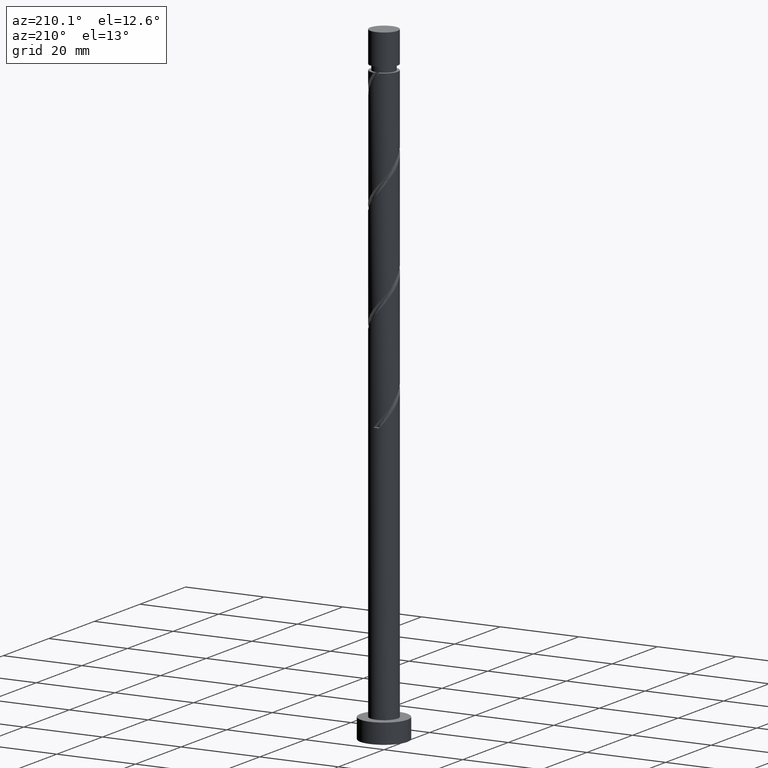
[diagram: clean part render]
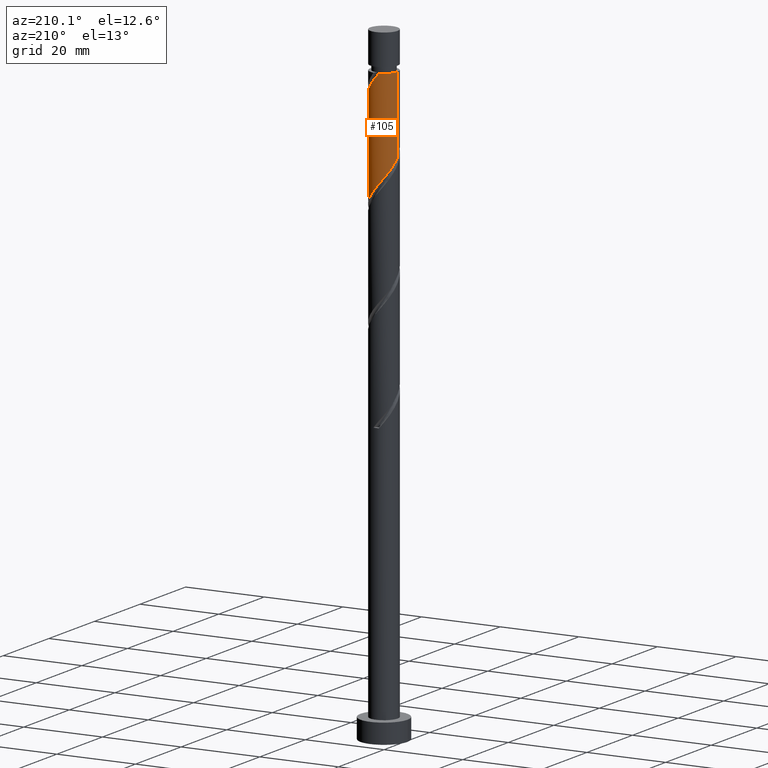
[diagram: same view with one face highlighted and labeled with its STEP entity id]
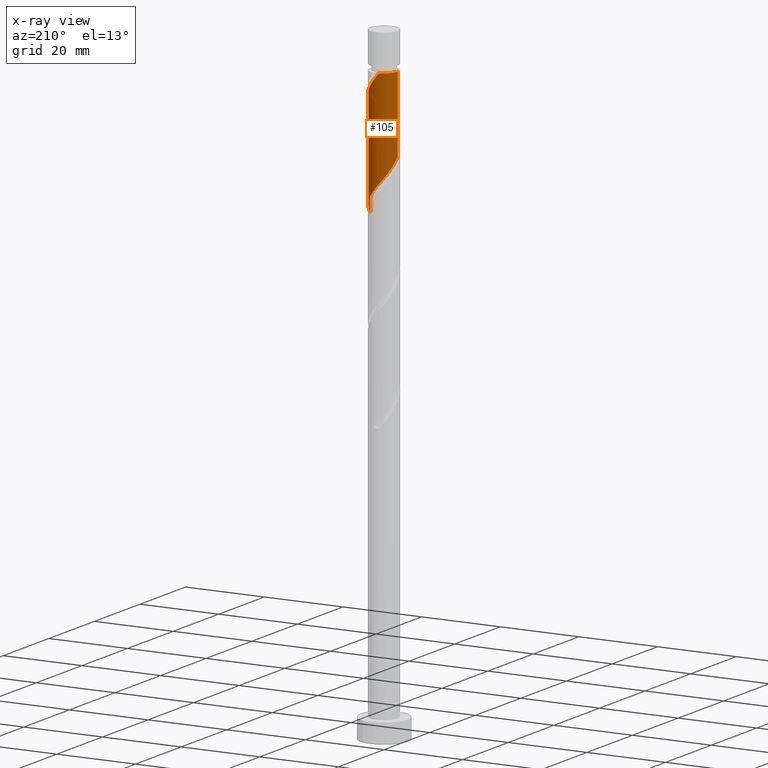
[diagram: x-ray of the same camera — body ghosted, the highlighted face saturated]
A machine part, auxiliary view. The second image highlights one B-rep face of the part: STEP entity #105.
The next image is the same camera in x-ray: the body ghosted, the highlighted face saturated — about 0% of this face is hidden behind the body in this view.
In plain terms, the highlighted cylindrical surface (edge-blend (fillet) strip) has radius 3.5 mm, axis along (-0, -0, -1).
Its self-contained STEP definition (entity closure, byte-faithful):
#44 = VERTEX_POINT ( 'NONE', #633 ) ;
#47 = CARTESIAN_POINT ( 'NONE',  ( 0.6964912059746352080, 3.430000000000000604, 124.1076006561708169 ) ) ;
#82 = EDGE_CURVE ( 'NONE', #663, #44, #1357, .T. ) ;
#85 = CARTESIAN_POINT ( 'NONE',  ( 2.136116297704123035, 2.772545249889145413, 147.1379036864738623 ) ) ;
#90 = CARTESIAN_POINT ( 'NONE',  ( 1.737484471651195017, 3.079672406947903784, 147.7439642925345140 ) ) ;
#94 = CARTESIAN_POINT ( 'NONE',  ( 3.126661557603649388, 1.651430267237720129, 145.3197218682921061 ) ) ;
#105 = ADVANCED_FACE ( 'NONE', ( #1432 ), #1174, .T. ) ;
#108 = CARTESIAN_POINT ( 'NONE',  ( -3.295966512314554286, 1.177541825032570211, 130.1682067167769219 ) ) ;
#144 = CARTESIAN_POINT ( 'NONE',  ( 2.801055960780706400, 2.158082465505002823, 121.0772976258678000 ) ) ;
#228 = CARTESIAN_POINT ( 'NONE',  ( 3.494208578988649894, 0.2012620344778335846, 143.5015400501102079 ) ) ;
#306 = CARTESIAN_POINT ( 'NONE',  ( -0.2980642516491546212, 3.487285147774530358, 125.3197218682920777 ) ) ;
#320 = CARTESIAN_POINT ( 'NONE',  ( -0.6964912059746326545, 3.429999999999992166, 150.7742673228374883 ) ) ;
#346 = CARTESIAN_POINT ( 'NONE',  ( 2.534748123757053495, 2.465418092830386598, 146.5318430804132674 ) ) ;
#351 = CARTESIAN_POINT ( 'NONE',  ( 3.295966512314560060, 1.177541825032570211, 144.7136612622314260 ) ) ;
#431 = DIRECTION ( 'NONE',  ( -1.000000000000000000, 0.000000000000000000, 0.000000000000000000 ) ) ;
#475 = CARTESIAN_POINT ( 'NONE',  ( 1.268472316260691013, 3.262051192559717538, 148.3500248985950520 ) ) ;
#556 = CARTESIAN_POINT ( 'NONE',  ( -2.534748123757047278, 2.465418092830385266, 128.3500248985950805 ) ) ;
#606 = CARTESIAN_POINT ( 'NONE',  ( 2.830704840680350998, 2.058424180034053474, 145.9257824743526442 ) ) ;
#612 = CARTESIAN_POINT ( 'NONE',  ( -3.465271467025464069, 0.7036533828274215141, 130.7742673228375168 ) ) ;
#613 = DIRECTION ( 'NONE',  ( -1.000000000000000000, 0.000000000000000000, 0.000000000000000000 ) ) ;
#619 = CARTESIAN_POINT ( 'NONE',  ( -3.500000000000000444, -1.809775305123072608E-15, 131.6237218021383910 ) ) ;
#633 = CARTESIAN_POINT ( 'NONE',  ( 3.499999999999999556, -3.769118817281109849E-15, 118.2903884688050482 ) ) ;
#652 = CARTESIAN_POINT ( 'NONE',  ( 3.500000000000000444, 0.4008512458479271956, 118.7763484217763761 ) ) ;
#663 = VERTEX_POINT ( 'NONE', #619 ) ;
#670 = CARTESIAN_POINT ( 'NONE',  ( -1.737484471651192353, 3.079672406947898899, 127.1379036864739192 ) ) ;
#689 = CARTESIAN_POINT ( 'NONE',  ( -2.136116297704119926, 2.772545249889141417, 127.7439642925344572 ) ) ;
#731 = DIRECTION ( 'NONE',  ( -0.000000000000000000, -0.000000000000000000, -1.000000000000000000 ) ) ;
#743 = AXIS2_PLACEMENT_3D ( 'NONE', #976, #1388, #613 ) ;
#744 = CARTESIAN_POINT ( 'NONE',  ( -3.500000000000000000, 0.1007143428333827501, 131.5016237974201658 ) ) ;
#746 = CARTESIAN_POINT ( 'NONE',  ( -3.499999999999993783, 0.000000000000000000, 150.7742673228374883 ) ) ;
#801 = CARTESIAN_POINT ( 'NONE',  ( 3.409370647451650527, 0.7913228091588876412, 119.2591158076859728 ) ) ;
#808 = CARTESIAN_POINT ( 'NONE',  ( 3.499999999999999556, -3.769118817281109849E-15, 118.2903884688050624 ) ) ;
#819 = ORIENTED_EDGE ( 'NONE', *, *, #1333, .T. ) ;
#837 = CARTESIAN_POINT ( 'NONE',  ( 3.500000000000005329, 0.1007143428333801827, 143.3802441815881537 ) ) ;
#867 = VERTEX_POINT ( 'NONE', #746 ) ;
#899 = VECTOR ( 'NONE', #1369, 1000.000000000000000 ) ;
#914 = CARTESIAN_POINT ( 'NONE',  ( 3.048325782366091641, 1.719799384975514656, 120.4712370198072193 ) ) ;
#917 = ORIENTED_EDGE ( 'NONE', *, *, #1402, .F. ) ;
#924 = CARTESIAN_POINT ( 'NONE',  ( -1.268472316260688793, 3.262051192559713098, 126.5318430804132959 ) ) ;
#931 = VECTOR ( 'NONE', #731, 1000.000000000000000 ) ;
#935 =( BOUNDED_CURVE ( )  B_SPLINE_CURVE ( 2, ( #1376, #837, #228, #1643, #351, #94, #606, #346, #85, #90, #475, #1494, #1263, #1136, #989 ),
 .UNSPECIFIED., .F., .T. ) 
 B_SPLINE_CURVE_WITH_KNOTS ( ( 3, 2, 2, 2, 2, 2, 2, 3 ),
 ( 0.6795252162417514397, 0.6818181818181818787, 0.6931818181818181213, 0.7045454545454545858, 0.7159090909090908283, 0.7272727272727272929, 0.7386363636363636465, 0.7500000000000000000 ),
 .UNSPECIFIED. ) 
 CURVE ( )  GEOMETRIC_REPRESENTATION_ITEM ( )  RATIONAL_B_SPLINE_CURVE ( ( 0.9061101570135634553, 0.9072237824201456746, 0.9090909090909231605, 0.8998376744372253988, 0.9090909090909231605, 0.8998376744372253988, 0.9090909090909231605, 0.8998376744372253988, 0.9090909090909231605, 0.8998376744372253988, 0.9090909090909231605, 0.8998376744372253988, 0.9090909090909231605, 0.8998376744372253988, 0.9090909090909231605 ) ) 
 REPRESENTATION_ITEM ( '' )  );
#976 = CARTESIAN_POINT ( 'NONE',  ( 0.000000000000000000, 0.000000000000000000, 150.7742673228374883 ) ) ;
#985 = CARTESIAN_POINT ( 'NONE',  ( -3.500000000000000000, 0.000000000000000000, 160.0000000000000000 ) ) ;
#989 = CARTESIAN_POINT ( 'NONE',  ( -0.6964912059746326545, 3.429999999999992166, 150.7742673228374883 ) ) ;
#996 = CARTESIAN_POINT ( 'NONE',  ( 3.500000000000004885, 1.929429870751030982E-15, 143.2581461768699000 ) ) ;
#1002 = CARTESIAN_POINT ( 'NONE',  ( -3.126661557603643171, 1.651430267237719463, 129.5621461107163270 ) ) ;
#1051 = CARTESIAN_POINT ( 'NONE',  ( 3.295595603951475994, 1.281516304446022936, 119.8651764137465960 ) ) ;
#1069 = CARTESIAN_POINT ( 'NONE',  ( 2.079591422188713956, 2.859813619819376651, 122.2894188379890181 ) ) ;
#1117 = CARTESIAN_POINT ( 'NONE',  ( 3.500000000000000000, 4.286263797015736595E-16, 160.0000000000000000 ) ) ;
#1136 = CARTESIAN_POINT ( 'NONE',  ( -0.2033316575718749075, 3.530140317377540082, 150.1682067167769219 ) ) ;
#1174 = CYLINDRICAL_SURFACE ( 'NONE', #1375, 3.500000000000000000 ) ;
#1175 = CIRCLE ( 'NONE', #743, 3.499999999999993783 ) ;
#1195 = CARTESIAN_POINT ( 'NONE',  ( 1.634621088283053858, 3.094836651220921553, 122.8954794440496414 ) ) ;
#1214 = CARTESIAN_POINT ( 'NONE',  ( 2.440323691484711066, 2.508948042662190403, 121.6833582319284233 ) ) ;
#1263 = CARTESIAN_POINT ( 'NONE',  ( 0.2980642516491557870, 3.487285147774535243, 149.5621461107162418 ) ) ;
#1270 = CARTESIAN_POINT ( 'NONE',  ( -3.494208578988645009, 0.2012620344778347226, 131.3803279288981116 ) ) ;
#1311 = CARTESIAN_POINT ( 'NONE',  ( 0.2033316575718757679, 3.530140317377534309, 124.7136612622314402 ) ) ;
#1321 = VERTEX_POINT ( 'NONE', #320 ) ;
#1327 = CARTESIAN_POINT ( 'NONE',  ( 1.189650754377393316, 3.329859682622465566, 123.5015400501102221 ) ) ;
#1333 = EDGE_CURVE ( 'NONE', #1431, #44, #1395, .T. ) ;
#1346 = EDGE_CURVE ( 'NONE', #867, #1321, #1175, .T. ) ;
#1350 = ORIENTED_EDGE ( 'NONE', *, *, #1446, .F. ) ;
#1357 =( BOUNDED_CURVE ( )  B_SPLINE_CURVE ( 2, ( #1553, #744, #1270, #612, #108, #1002, #1520, #556, #689, #670, #924, #1440, #306, #1311, #47, #1327, #1195, #1069, #1214, #144, #914, #1051, #801, #652, #808 ),
 .UNSPECIFIED., .F., .T. ) 
 B_SPLINE_CURVE_WITH_KNOTS ( ( 3, 2, 2, 2, 2, 2, 2, 2, 2, 2, 2, 2, 3 ),
 ( 0.4295252162417514397, 0.4318181818181818232, 0.4431818181818181768, 0.4545454545454545303, 0.4659090909090908839, 0.4772727272727272929, 0.4886363636363636465, 0.5000000000000000000, 0.5113636363636363535, 0.5227272727272727071, 0.5340909090909090606, 0.5454545454545454142, 0.5545252162417513286 ),
 .UNSPECIFIED. ) 
 CURVE ( )  GEOMETRIC_REPRESENTATION_ITEM ( )  RATIONAL_B_SPLINE_CURVE ( ( 0.9061101570135570160, 0.9072237824201392353, 0.9090909090909166101, 0.8998376744372190705, 0.9090909090909166101, 0.8998376744372190705, 0.9090909090909166101, 0.8998376744372190705, 0.9090909090909166101, 0.8998376744372190705, 0.9090909090909166101, 0.8998376744372190705, 0.9090909090909166101, 0.8998376744372190705, 0.9090909090909166101, 0.8998376744372190705, 0.9090909090909166101, 0.8998376744372190705, 0.9090909090909166101, 0.8998376744372190705, 0.9090909090909166101, 0.8998376744372190705, 0.9090909090909166101, 0.9017048011079964454, 0.9061101570135571270 ) ) 
 REPRESENTATION_ITEM ( '' )  );
#1369 = DIRECTION ( 'NONE',  ( -0.000000000000000000, -0.000000000000000000, -1.000000000000000000 ) ) ;
#1371 = EDGE_LOOP ( 'NONE', ( #917, #819, #1489, #1350, #1466 ) ) ;
#1375 = AXIS2_PLACEMENT_3D ( 'NONE', #1458, #1591, #431 ) ;
#1376 = CARTESIAN_POINT ( 'NONE',  ( 3.500000000000004441, 1.929429870751030982E-15, 143.2581461768699000 ) ) ;
#1388 = DIRECTION ( 'NONE',  ( -0.000000000000000000, -0.000000000000000000, -1.000000000000000000 ) ) ;
#1395 = LINE ( 'NONE', #1117, #931 ) ;
#1402 = EDGE_CURVE ( 'NONE', #1431, #1321, #935, .T. ) ;
#1431 = VERTEX_POINT ( 'NONE', #996 ) ;
#1432 = FACE_OUTER_BOUND ( 'NONE', #1371, .T. ) ;
#1440 = CARTESIAN_POINT ( 'NONE',  ( -0.7994601608701848994, 3.444429978171526852, 125.9257824743526584 ) ) ;
#1446 = EDGE_CURVE ( 'NONE', #867, #663, #1502, .T. ) ;
#1458 = CARTESIAN_POINT ( 'NONE',  ( 0.000000000000000000, 0.000000000000000000, 160.0000000000000000 ) ) ;
#1466 = ORIENTED_EDGE ( 'NONE', *, *, #1346, .T. ) ;
#1489 = ORIENTED_EDGE ( 'NONE', *, *, #82, .F. ) ;
#1494 = CARTESIAN_POINT ( 'NONE',  ( 0.7994601608701871198, 3.444429978171531737, 148.9560855046556753 ) ) ;
#1502 = LINE ( 'NONE', #985, #899 ) ;
#1520 = CARTESIAN_POINT ( 'NONE',  ( -2.830704840680345669, 2.058424180034052586, 128.9560855046557037 ) ) ;
#1553 = CARTESIAN_POINT ( 'NONE',  ( -3.500000000000000444, -1.809775305123072608E-15, 131.6237218021383910 ) ) ;
#1591 = DIRECTION ( 'NONE',  ( -0.000000000000000000, -0.000000000000000000, -1.000000000000000000 ) ) ;
#1643 = CARTESIAN_POINT ( 'NONE',  ( 3.465271467025468954, 0.7036533828274212921, 144.1076006561708880 ) ) ;